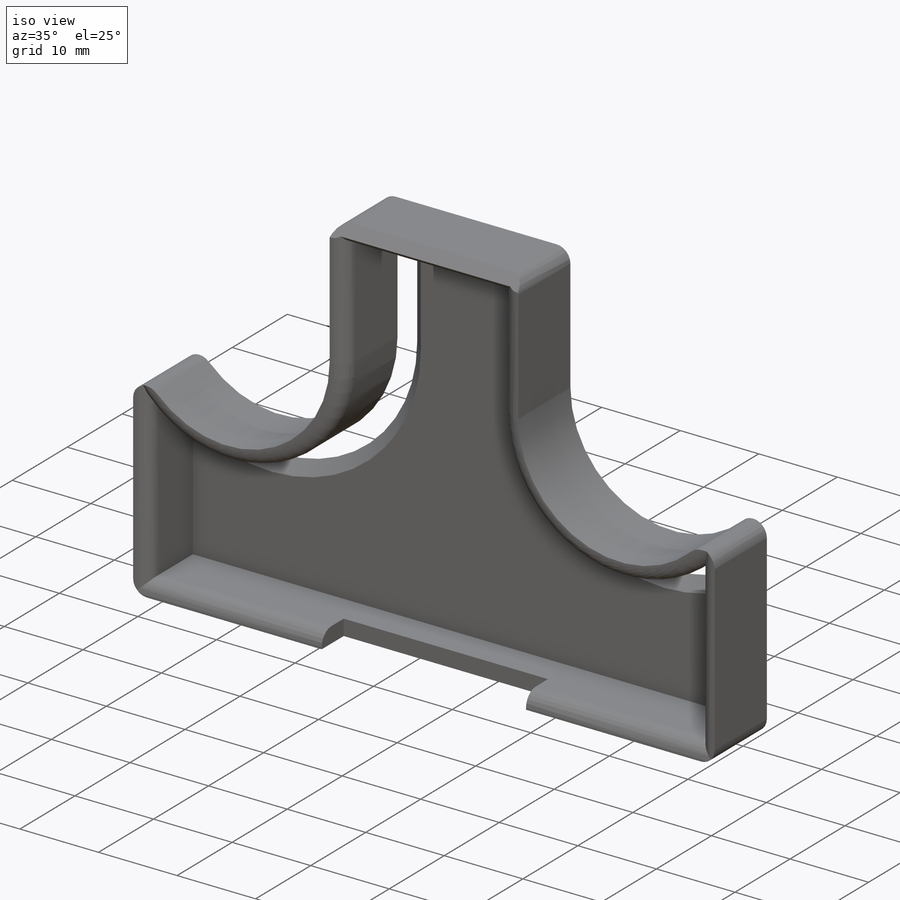
[diagram: iso view]
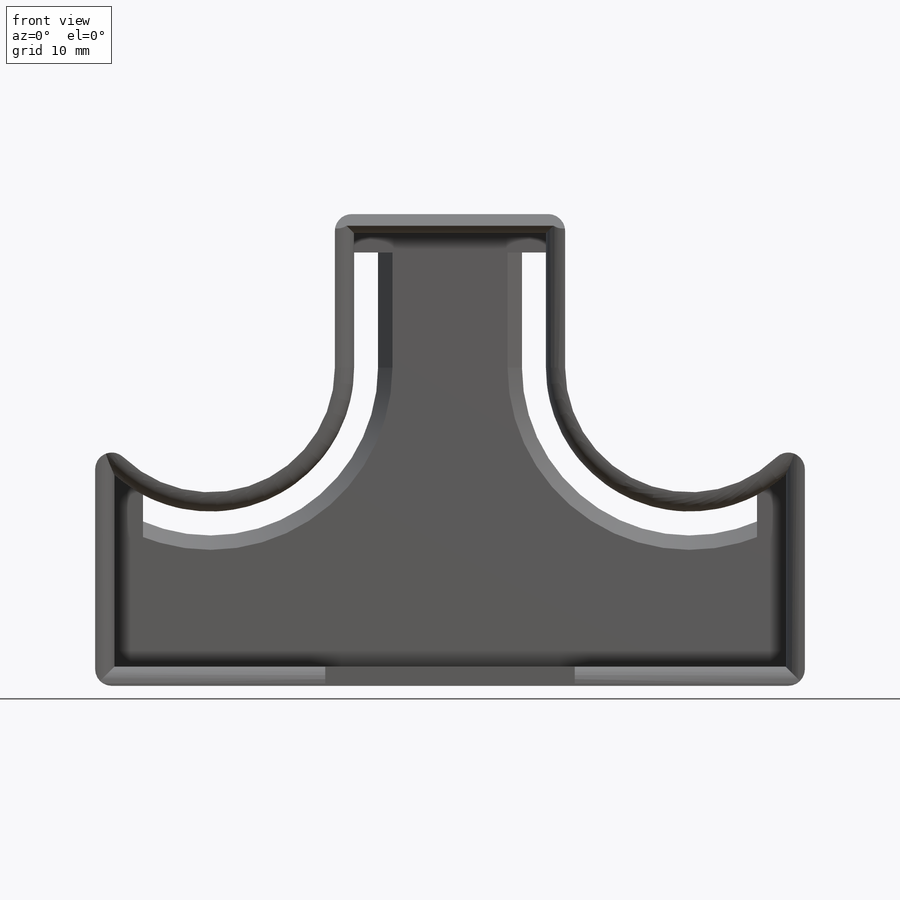
[diagram: front view]
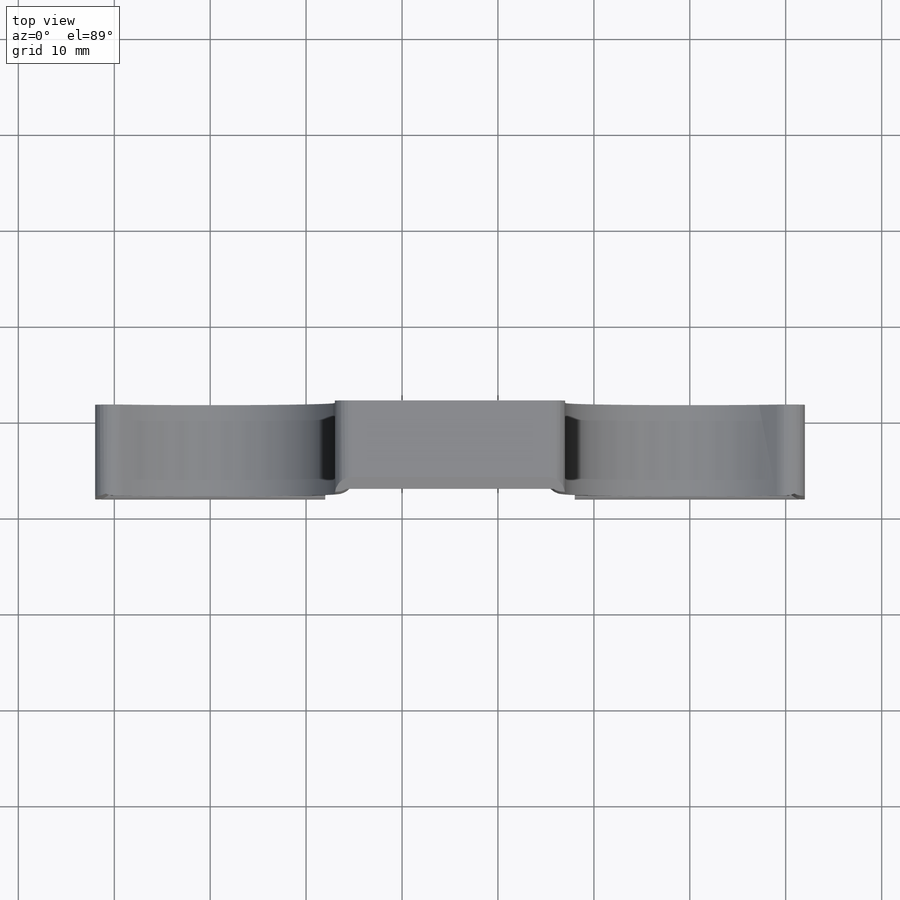
[diagram: top view]
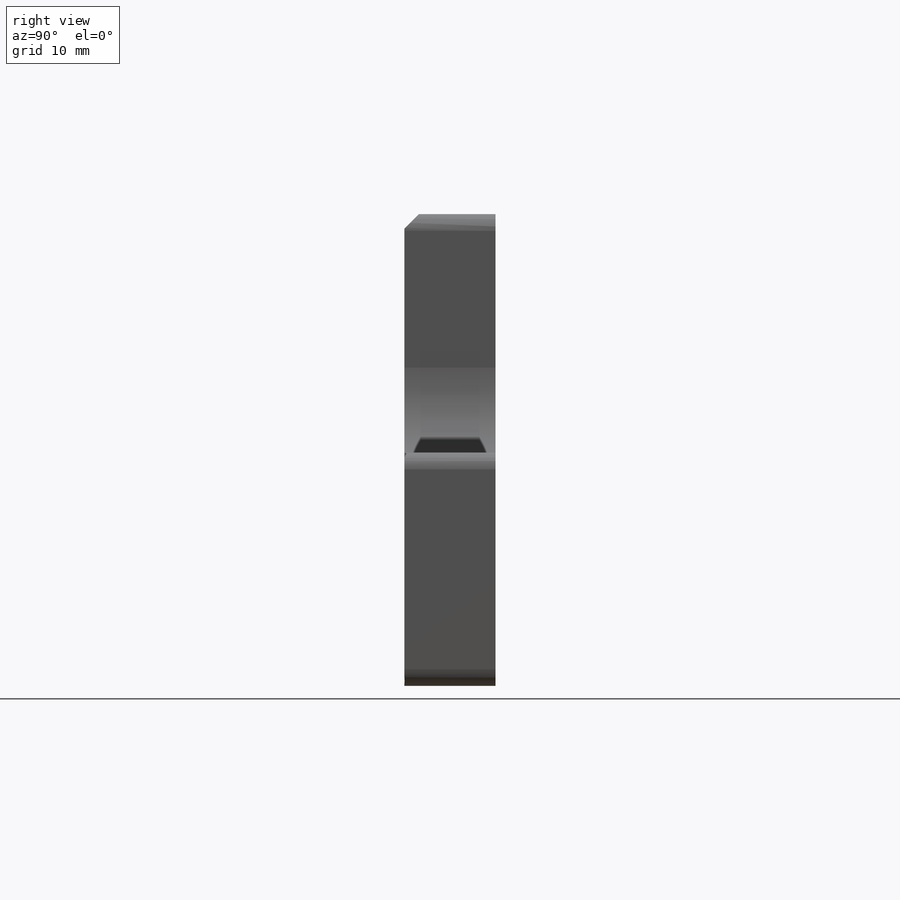
[diagram: right view]
SOLIDWORKS PART (.sldprt)
format: sldprt  version: not decoded by parser v0  size: 364,544 bytes
history: native  units: mm
features: sketch x3, extrude x2, chamfer x2, material x1, fillet x1, cut_extrude x1 (+12 scaffold rows collapsed)
feature tree (22):
  scaffold x12  (default folders/planes/origin — collapsed)
  material  "ABS PC"
  sketch  "Sketch1"  dims[c1.D5=17.0mm c1.D9=17.0mm c1.D10=17.0mm c1.D8=~12.839673mm c1.D1=70.0mm c1.D2=20.0mm c1.D3=20.0mm c1.D4=22.0mm c1.D6=10.0mm c1.D7=10.0mm c2.D1=10.0mm c2.D2=10.0mm c2.D3=15.0mm c2.D4=15.0mm c2.D5=20.0mm c2.D6=20.0mm c2.D7=70.0mm c2.D8=16.5mm c2.D9=2.0mm c2.D10=2.0mm c2.D11=2.0mm c2.D12=2.0mm c2.D13=2.0mm c2.D14=2.0mm c3.D1=10.0mm c3.D2=15.0mm c3.D3=70.0mm c4.D1=15.0mm c4.D2=10.0mm c4.D4=20.0mm c4.D5=14.0mm c4.D6=20.0mm c4.D7=10.0mm c4.D8=2.0mm c4.D9=2.0mm c4.D10=2.0mm c4.D11=2.0mm c4.D12=74.0mm c5.D12=~0.354776deg c6.D12=2.0mm c6.D1=10.0mm c6.D2=10.0mm c6.D3=15.0mm c6.D4=15.0mm c6.D5=14.0mm c6.D6=20.0mm c6.D7=20.0mm c6.D8=70.0mm c6.D9=20.0mm c6.D10=2.0mm c6.D11=2.0mm c7.D12=2.0mm c7.D13=2.0mm c7.D14=2.0mm c7.D15=2.0mm]
  extrude  "Boss-Extrude1"  Depth=8mm
  sketch  "Sketch2"  dims[c1.D1=2.5mm c1.D2=5.0mm c1.D3=3.0mm c1.D4=2.0mm c2.D2=2.5mm c2.D4=5.0mm c3.D2=12.0mm]
  extrude  "Boss-Extrude2"  Depth=1.5mm
  chamfer  "Chamfer1"  Distance=1.5mm Angle=45deg
  chamfer  "Chamfer2"  Distance=1.5mm Angle=45deg
  fillet  "Fillet1"  Radius=1.75mm
  sketch  "Sketch3"  dims[D1=26.0mm D2=5.5mm D3=13.0mm]
  cut_extrude  "Cut-Extrude1"  [1 undecoded]
decode coverage: 8 of 9 modeling features carry decoded parameters
note: ~ marks probable driven/reference dimensions
note: 1 parameter value undecoded
note: suppression state not decoded; provenance and decode notes live in map.json
